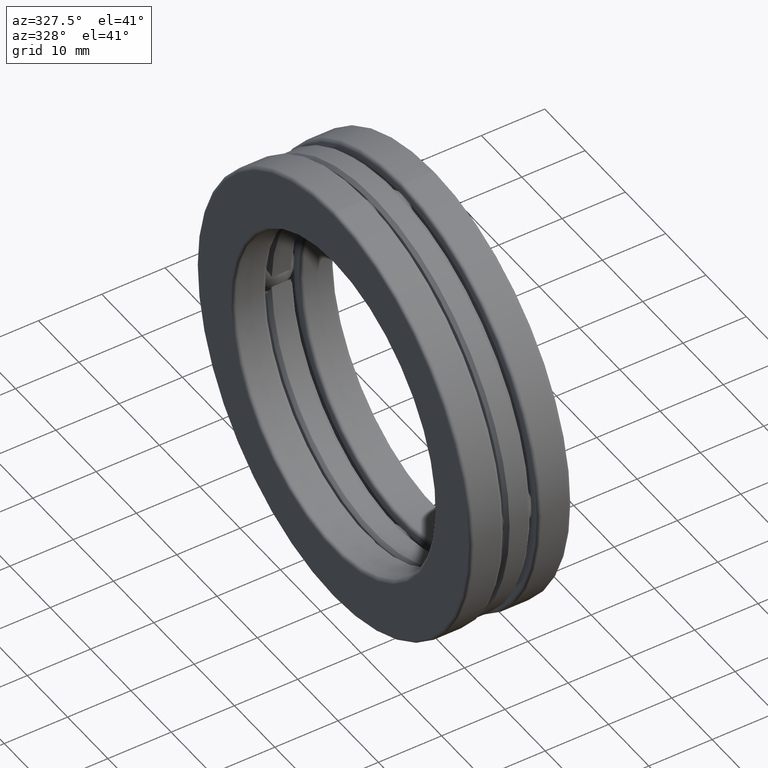
[diagram: clean part render]
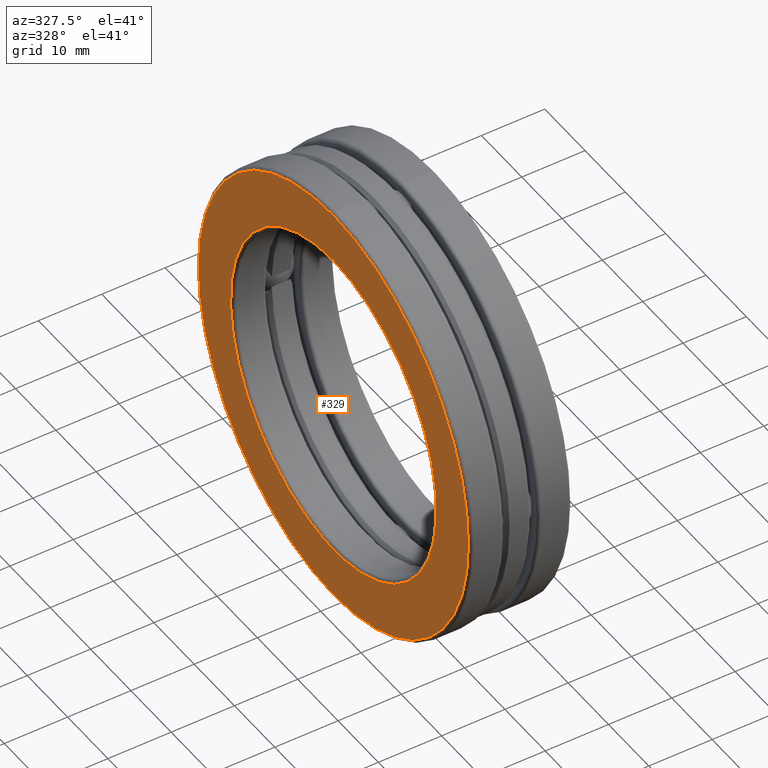
[diagram: same view with one face highlighted and labeled with its STEP entity id]
A machine part, auxiliary view. The second image highlights one B-rep face of the part: STEP entity #329.
In plain terms, the highlighted planar face has unit normal (1, 0, 0).
Its self-contained STEP definition (entity closure, byte-faithful):
#31 = DIRECTION ( 'NONE',  ( 0.0000000000000000000, 0.0000000000000000000, 1.000000000000000000 ) ) ;
#49 = CIRCLE ( 'NONE', #601, 1.004499999999999900 ) ;
#107 = DIRECTION ( 'NONE',  ( -1.000000000000000000, -0.0000000000000000000, -0.0000000000000000000 ) ) ;
#125 = CARTESIAN_POINT ( 'NONE',  ( -0.3150000000000000000, 0.0000000000000000000, 1.318499999999999800 ) ) ;
#136 = VERTEX_POINT ( 'NONE', #684 ) ;
#151 = ORIENTED_EDGE ( 'NONE', *, *, #595, .F. ) ;
#204 = VERTEX_POINT ( 'NONE', #125 ) ;
#211 = FACE_OUTER_BOUND ( 'NONE', #492, .T. ) ;
#269 = DIRECTION ( 'NONE',  ( -1.000000000000000000, -0.0000000000000000000, -0.0000000000000000000 ) ) ;
#294 = CARTESIAN_POINT ( 'NONE',  ( -0.3150000000000000000, 0.0000000000000000000, 0.0000000000000000000 ) ) ;
#329 = ADVANCED_FACE ( 'NONE', ( #338, #211 ), #356, .F. ) ;
#338 = FACE_BOUND ( 'NONE', #569, .T. ) ;
#356 = PLANE ( 'NONE',  #720 ) ;
#365 = DIRECTION ( 'NONE',  ( 0.0000000000000000000, 0.0000000000000000000, -1.000000000000000000 ) ) ;
#389 = AXIS2_PLACEMENT_3D ( 'NONE', #294, #107, #31 ) ;
#421 = EDGE_CURVE ( 'NONE', #204, #204, #725, .T. ) ;
#423 = DIRECTION ( 'NONE',  ( 1.000000000000000000, 0.0000000000000000000, 0.0000000000000000000 ) ) ;
#492 = EDGE_LOOP ( 'NONE', ( #730 ) ) ;
#569 = EDGE_LOOP ( 'NONE', ( #151 ) ) ;
#595 = EDGE_CURVE ( 'NONE', #136, #136, #49, .T. ) ;
#600 = CARTESIAN_POINT ( 'NONE',  ( -0.3150000000000000000, 0.0000000000000000000, 0.0000000000000000000 ) ) ;
#601 = AXIS2_PLACEMENT_3D ( 'NONE', #641, #269, #701 ) ;
#641 = CARTESIAN_POINT ( 'NONE',  ( -0.3150000000000000000, 0.0000000000000000000, 0.0000000000000000000 ) ) ;
#684 = CARTESIAN_POINT ( 'NONE',  ( -0.3150000000000000000, 0.0000000000000000000, 1.004499999999999900 ) ) ;
#701 = DIRECTION ( 'NONE',  ( 0.0000000000000000000, 0.0000000000000000000, 1.000000000000000000 ) ) ;
#720 = AXIS2_PLACEMENT_3D ( 'NONE', #600, #423, #365 ) ;
#725 = CIRCLE ( 'NONE', #389, 1.318499999999999800 ) ;
#730 = ORIENTED_EDGE ( 'NONE', *, *, #421, .T. ) ;